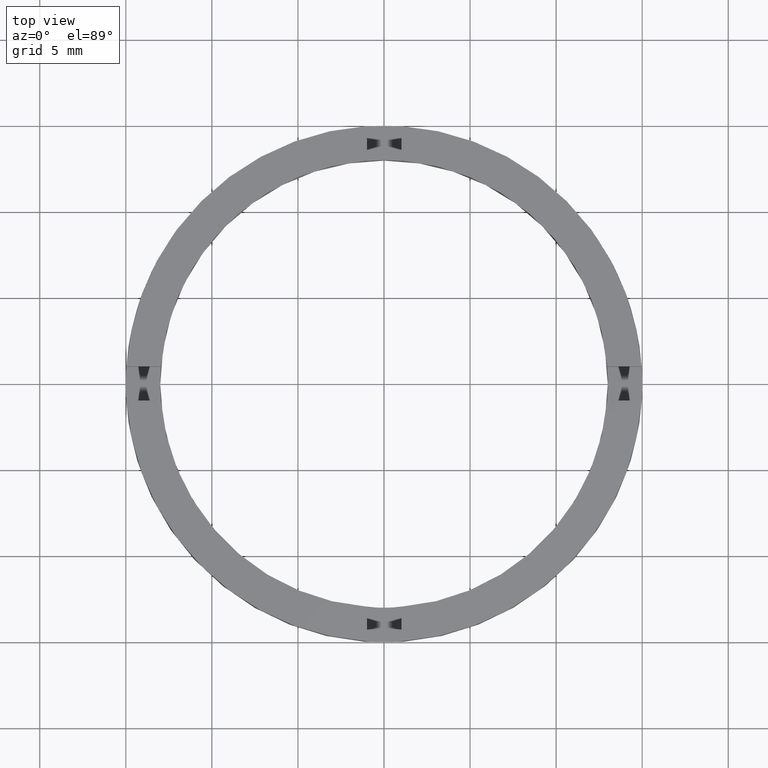
[diagram: clean part render]
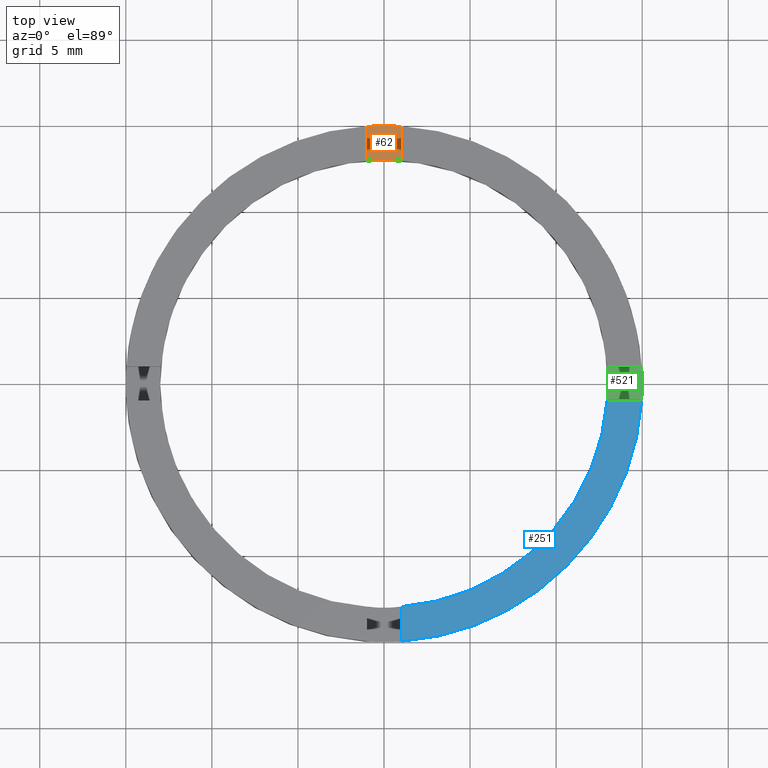
[diagram: same view with three faces highlighted in distinct colors, each labeled with its STEP entity id]
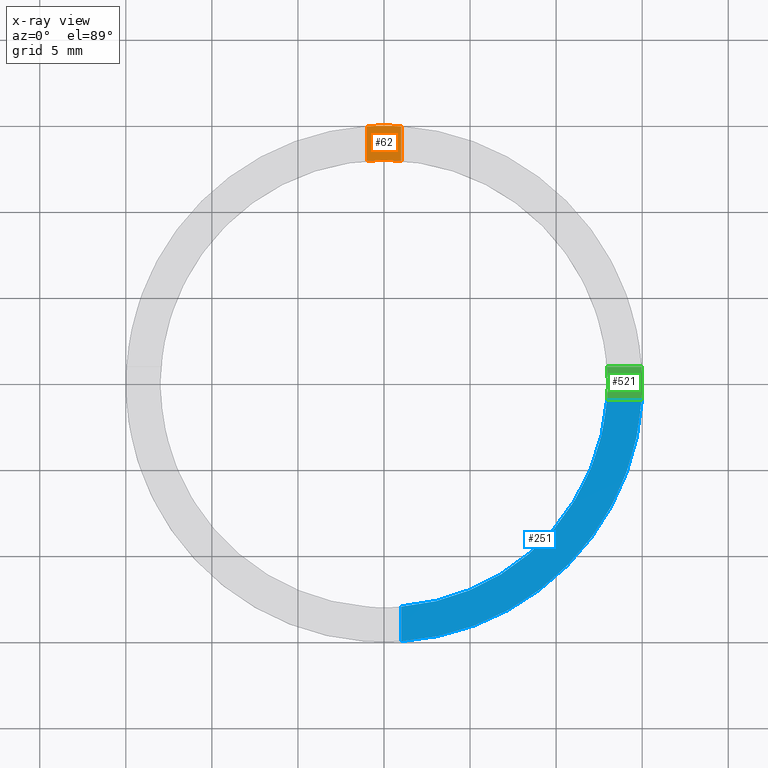
[diagram: x-ray of the same camera — body ghosted, the three highlighted faces saturated]
A machine part, top view with three faces highlighted in distinct colors.
The next image is the same camera in x-ray (body ghosted, the three faces saturated) — at least one of them is partly hidden behind the body in this view.
Their STEP definitions:

[orange] entity #62 — the highlighted planar face has unit normal (0, -0, 1).
#4 = EDGE_CURVE ( 'NONE', #371, #401, #487, .T. ) ;
#20 = FACE_OUTER_BOUND ( 'NONE', #750, .T. ) ;
#24 = DIRECTION ( 'NONE',  ( 0.000000000000000000, 1.000000000000000000, 0.000000000000000000 ) ) ;
#36 = CARTESIAN_POINT ( 'NONE',  ( -1.000000000000024869, 14.96662954709576354, 1.500000000000000000 ) ) ;
#62 = ADVANCED_FACE ( 'NONE', ( #20 ), #635, .T. ) ;
#73 = CARTESIAN_POINT ( 'NONE',  ( 0.000000000000000000, 0.000000000000000000, 1.500000000000000000 ) ) ;
#111 = CARTESIAN_POINT ( 'NONE',  ( 0.9999999999999751310, 14.96662954709576709, 1.500000000000000000 ) ) ;
#117 = EDGE_CURVE ( 'NONE', #371, #690, #391, .T. ) ;
#161 = DIRECTION ( 'NONE',  ( 1.000000000000000000, 0.000000000000000000, -0.000000000000000000 ) ) ;
#167 = LINE ( 'NONE', #291, #435 ) ;
#227 = ORIENTED_EDGE ( 'NONE', *, *, #117, .T. ) ;
#249 = CARTESIAN_POINT ( 'NONE',  ( 0.000000000000000000, 0.000000000000000000, 1.500000000000000000 ) ) ;
#291 = CARTESIAN_POINT ( 'NONE',  ( -1.000000000000024869, 4.999999999999999112, 1.500000000000000000 ) ) ;
#302 = AXIS2_PLACEMENT_3D ( 'NONE', #249, #344, #514 ) ;
#306 = CARTESIAN_POINT ( 'NONE',  ( 0.000000000000000000, 0.000000000000000000, 1.500000000000000000 ) ) ;
#344 = DIRECTION ( 'NONE',  ( 0.000000000000000000, -0.000000000000000000, 1.000000000000000000 ) ) ;
#363 = DIRECTION ( 'NONE',  ( 1.000000000000000000, 0.000000000000000000, 0.000000000000000000 ) ) ;
#371 = VERTEX_POINT ( 'NONE', #733 ) ;
#391 = LINE ( 'NONE', #473, #689 ) ;
#401 = VERTEX_POINT ( 'NONE', #643 ) ;
#404 = VERTEX_POINT ( 'NONE', #36 ) ;
#429 = DIRECTION ( 'NONE',  ( -0.000000000000000000, -1.000000000000000000, -0.000000000000000000 ) ) ;
#435 = VECTOR ( 'NONE', #429, 1000.000000000000000 ) ;
#449 = DIRECTION ( 'NONE',  ( 0.000000000000000000, -0.000000000000000000, 1.000000000000000000 ) ) ;
#456 = AXIS2_PLACEMENT_3D ( 'NONE', #306, #449, #363 ) ;
#473 = CARTESIAN_POINT ( 'NONE',  ( 0.9999999999999751310, 4.999999999999999112, 1.500000000000000000 ) ) ;
#487 = CIRCLE ( 'NONE', #456, 13.00000000000000178 ) ;
#488 = DIRECTION ( 'NONE',  ( 0.000000000000000000, -0.000000000000000000, 1.000000000000000000 ) ) ;
#504 = EDGE_CURVE ( 'NONE', #690, #404, #709, .T. ) ;
#514 = DIRECTION ( 'NONE',  ( 1.000000000000000000, 0.000000000000000000, 0.000000000000000000 ) ) ;
#544 = AXIS2_PLACEMENT_3D ( 'NONE', #73, #488, #161 ) ;
#570 = EDGE_CURVE ( 'NONE', #404, #401, #167, .T. ) ;
#621 = ORIENTED_EDGE ( 'NONE', *, *, #504, .T. ) ;
#635 = PLANE ( 'NONE',  #544 ) ;
#643 = CARTESIAN_POINT ( 'NONE',  ( -1.000000000000024869, 12.96148139681571898, 1.500000000000000000 ) ) ;
#685 = ORIENTED_EDGE ( 'NONE', *, *, #4, .F. ) ;
#689 = VECTOR ( 'NONE', #24, 1000.000000000000000 ) ;
#690 = VERTEX_POINT ( 'NONE', #111 ) ;
#709 = CIRCLE ( 'NONE', #302, 15.00000000000000000 ) ;
#733 = CARTESIAN_POINT ( 'NONE',  ( 0.9999999999999751310, 12.96148139681572431, 1.500000000000000000 ) ) ;
#750 = EDGE_LOOP ( 'NONE', ( #621, #754, #685, #227 ) ) ;
#754 = ORIENTED_EDGE ( 'NONE', *, *, #570, .T. ) ;

[blue] entity #251 — the highlighted planar face has unit normal (0, 0, 1).
#14 = LINE ( 'NONE', #101, #17 ) ;
#17 = VECTOR ( 'NONE', #195, 1000.000000000000000 ) ;
#31 = EDGE_CURVE ( 'NONE', #143, #503, #14, .T. ) ;
#63 = DIRECTION ( 'NONE',  ( 0.000000000000000000, 0.000000000000000000, 1.000000000000000000 ) ) ;
#98 = ORIENTED_EDGE ( 'NONE', *, *, #31, .F. ) ;
#101 = CARTESIAN_POINT ( 'NONE',  ( 4.999999999999993783, -1.000000000000159872, 2.500000000000000000 ) ) ;
#104 = ORIENTED_EDGE ( 'NONE', *, *, #632, .F. ) ;
#118 = VECTOR ( 'NONE', #603, 1000.000000000000000 ) ;
#120 = CARTESIAN_POINT ( 'NONE',  ( 0.9999999999998366862, -12.96148139681573497, 2.500000000000000000 ) ) ;
#131 = LINE ( 'NONE', #367, #118 ) ;
#143 = VERTEX_POINT ( 'NONE', #216 ) ;
#185 = FACE_OUTER_BOUND ( 'NONE', #335, .T. ) ;
#195 = DIRECTION ( 'NONE',  ( 1.000000000000000000, 4.336808689942017736E-17, 0.000000000000000000 ) ) ;
#216 = CARTESIAN_POINT ( 'NONE',  ( 12.96148139681570832, -1.000000000000159428, 2.500000000000000000 ) ) ;
#239 = ORIENTED_EDGE ( 'NONE', *, *, #325, .T. ) ;
#251 = ADVANCED_FACE ( 'NONE', ( #185 ), #388, .T. ) ;
#283 = AXIS2_PLACEMENT_3D ( 'NONE', #327, #63, #431 ) ;
#325 = EDGE_CURVE ( 'NONE', #348, #503, #699, .T. ) ;
#327 = CARTESIAN_POINT ( 'NONE',  ( 0.000000000000000000, 0.000000000000000000, 2.500000000000000000 ) ) ;
#335 = EDGE_LOOP ( 'NONE', ( #98, #763, #104, #239 ) ) ;
#348 = VERTEX_POINT ( 'NONE', #622 ) ;
#367 = CARTESIAN_POINT ( 'NONE',  ( 0.9999999999998356870, -5.000000000000179412, 2.500000000000000000 ) ) ;
#388 = PLANE ( 'NONE',  #434 ) ;
#390 = CIRCLE ( 'NONE', #283, 13.00000000000000178 ) ;
#431 = DIRECTION ( 'NONE',  ( 1.000000000000000000, 0.000000000000000000, 0.000000000000000000 ) ) ;
#433 = CARTESIAN_POINT ( 'NONE',  ( 14.96662954709575466, -1.000000000000159428, 2.500000000000000000 ) ) ;
#434 = AXIS2_PLACEMENT_3D ( 'NONE', #721, #580, #717 ) ;
#503 = VERTEX_POINT ( 'NONE', #433 ) ;
#534 = DIRECTION ( 'NONE',  ( 0.000000000000000000, 0.000000000000000000, 1.000000000000000000 ) ) ;
#576 = CARTESIAN_POINT ( 'NONE',  ( 0.000000000000000000, 0.000000000000000000, 2.500000000000000000 ) ) ;
#580 = DIRECTION ( 'NONE',  ( 0.000000000000000000, 0.000000000000000000, 1.000000000000000000 ) ) ;
#603 = DIRECTION ( 'NONE',  ( -1.301042606982605321E-16, 1.000000000000000000, -0.000000000000000000 ) ) ;
#614 = AXIS2_PLACEMENT_3D ( 'NONE', #576, #534, #698 ) ;
#622 = CARTESIAN_POINT ( 'NONE',  ( 0.9999999999998369082, -14.96662954709577775, 2.500000000000000000 ) ) ;
#632 = EDGE_CURVE ( 'NONE', #348, #657, #131, .T. ) ;
#651 = EDGE_CURVE ( 'NONE', #657, #143, #390, .T. ) ;
#657 = VERTEX_POINT ( 'NONE', #120 ) ;
#698 = DIRECTION ( 'NONE',  ( 1.000000000000000000, 0.000000000000000000, 0.000000000000000000 ) ) ;
#699 = CIRCLE ( 'NONE', #614, 15.00000000000000000 ) ;
#717 = DIRECTION ( 'NONE',  ( 1.000000000000000000, 0.000000000000000000, -0.000000000000000000 ) ) ;
#721 = CARTESIAN_POINT ( 'NONE',  ( 0.000000000000000000, 0.000000000000000000, 2.500000000000000000 ) ) ;
#763 = ORIENTED_EDGE ( 'NONE', *, *, #651, .F. ) ;

[green] entity #521 — the highlighted planar face has unit normal (0, 0, 1).
#7 = CIRCLE ( 'NONE', #59, 13.00000000000000178 ) ;
#8 = CIRCLE ( 'NONE', #581, 15.00000000000000000 ) ;
#9 = DIRECTION ( 'NONE',  ( 1.000000000000000000, 0.000000000000000000, 0.000000000000000000 ) ) ;
#12 = EDGE_CURVE ( 'NONE', #454, #140, #8, .T. ) ;
#35 = EDGE_CURVE ( 'NONE', #427, #346, #7, .T. ) ;
#50 = CARTESIAN_POINT ( 'NONE',  ( 0.000000000000000000, 0.000000000000000000, 1.500000000000000000 ) ) ;
#56 = CARTESIAN_POINT ( 'NONE',  ( 0.000000000000000000, 0.000000000000000000, 1.500000000000000000 ) ) ;
#59 = AXIS2_PLACEMENT_3D ( 'NONE', #339, #284, #329 ) ;
#60 = CARTESIAN_POINT ( 'NONE',  ( 14.96662954709577775, 0.9999999999998406830, 1.500000000000000000 ) ) ;
#89 = EDGE_LOOP ( 'NONE', ( #238, #768, #605, #338, #518, #672 ) ) ;
#119 = DIRECTION ( 'NONE',  ( 1.000000000000000000, 0.000000000000000000, -0.000000000000000000 ) ) ;
#127 = CARTESIAN_POINT ( 'NONE',  ( 15.00000000000000000, 1.836970198721029589E-15, 1.500000000000000000 ) ) ;
#140 = VERTEX_POINT ( 'NONE', #127 ) ;
#163 = VERTEX_POINT ( 'NONE', #480 ) ;
#186 = VERTEX_POINT ( 'NONE', #60 ) ;
#198 = VECTOR ( 'NONE', #235, 1000.000000000000000 ) ;
#214 = DIRECTION ( 'NONE',  ( -1.000000000000000000, -4.336808689942017736E-17, -0.000000000000000000 ) ) ;
#235 = DIRECTION ( 'NONE',  ( 1.000000000000000000, 4.336808689942017736E-17, 0.000000000000000000 ) ) ;
#238 = ORIENTED_EDGE ( 'NONE', *, *, #12, .T. ) ;
#253 = CARTESIAN_POINT ( 'NONE',  ( 0.000000000000000000, 0.000000000000000000, 1.500000000000000000 ) ) ;
#256 = DIRECTION ( 'NONE',  ( 0.000000000000000000, 0.000000000000000000, 1.000000000000000000 ) ) ;
#257 = DIRECTION ( 'NONE',  ( 0.000000000000000000, 0.000000000000000000, 1.000000000000000000 ) ) ;
#284 = DIRECTION ( 'NONE',  ( 0.000000000000000000, 0.000000000000000000, 1.000000000000000000 ) ) ;
#288 = PLANE ( 'NONE',  #783 ) ;
#298 = EDGE_CURVE ( 'NONE', #163, #454, #460, .T. ) ;
#329 = DIRECTION ( 'NONE',  ( 1.000000000000000000, 0.000000000000000000, 0.000000000000000000 ) ) ;
#332 = DIRECTION ( 'NONE',  ( 0.000000000000000000, 0.000000000000000000, 1.000000000000000000 ) ) ;
#334 = DIRECTION ( 'NONE',  ( 0.000000000000000000, 0.000000000000000000, 1.000000000000000000 ) ) ;
#338 = ORIENTED_EDGE ( 'NONE', *, *, #35, .F. ) ;
#339 = CARTESIAN_POINT ( 'NONE',  ( 0.000000000000000000, 0.000000000000000000, 1.500000000000000000 ) ) ;
#341 = DIRECTION ( 'NONE',  ( 1.000000000000000000, 0.000000000000000000, 0.000000000000000000 ) ) ;
#346 = VERTEX_POINT ( 'NONE', #381 ) ;
#381 = CARTESIAN_POINT ( 'NONE',  ( 12.96148139681573497, 0.9999999999998406830, 1.500000000000000000 ) ) ;
#383 = CIRCLE ( 'NONE', #444, 13.00000000000000178 ) ;
#405 = CARTESIAN_POINT ( 'NONE',  ( 13.00000000000000178, 1.592040838891559293E-15, 1.500000000000000000 ) ) ;
#416 = CIRCLE ( 'NONE', #492, 15.00000000000000000 ) ;
#427 = VERTEX_POINT ( 'NONE', #405 ) ;
#444 = AXIS2_PLACEMENT_3D ( 'NONE', #253, #257, #740 ) ;
#454 = VERTEX_POINT ( 'NONE', #647 ) ;
#460 = LINE ( 'NONE', #538, #198 ) ;
#463 = CARTESIAN_POINT ( 'NONE',  ( 4.999999999999993783, 0.9999999999998402389, 1.500000000000000000 ) ) ;
#474 = LINE ( 'NONE', #463, #719 ) ;
#480 = CARTESIAN_POINT ( 'NONE',  ( 12.96148139681570832, -1.000000000000159428, 1.500000000000000000 ) ) ;
#492 = AXIS2_PLACEMENT_3D ( 'NONE', #56, #256, #341 ) ;
#500 = CARTESIAN_POINT ( 'NONE',  ( 0.000000000000000000, 0.000000000000000000, 1.500000000000000000 ) ) ;
#518 = ORIENTED_EDGE ( 'NONE', *, *, #724, .F. ) ;
#521 = ADVANCED_FACE ( 'NONE', ( #711 ), #288, .T. ) ;
#529 = EDGE_CURVE ( 'NONE', #140, #186, #416, .T. ) ;
#538 = CARTESIAN_POINT ( 'NONE',  ( 4.999999999999993783, -1.000000000000159872, 1.500000000000000000 ) ) ;
#581 = AXIS2_PLACEMENT_3D ( 'NONE', #50, #332, #9 ) ;
#584 = EDGE_CURVE ( 'NONE', #186, #346, #474, .T. ) ;
#605 = ORIENTED_EDGE ( 'NONE', *, *, #584, .T. ) ;
#647 = CARTESIAN_POINT ( 'NONE',  ( 14.96662954709575466, -1.000000000000159428, 1.500000000000000000 ) ) ;
#672 = ORIENTED_EDGE ( 'NONE', *, *, #298, .T. ) ;
#711 = FACE_OUTER_BOUND ( 'NONE', #89, .T. ) ;
#719 = VECTOR ( 'NONE', #214, 1000.000000000000000 ) ;
#724 = EDGE_CURVE ( 'NONE', #163, #427, #383, .T. ) ;
#740 = DIRECTION ( 'NONE',  ( 1.000000000000000000, 0.000000000000000000, 0.000000000000000000 ) ) ;
#768 = ORIENTED_EDGE ( 'NONE', *, *, #529, .T. ) ;
#783 = AXIS2_PLACEMENT_3D ( 'NONE', #500, #334, #119 ) ;